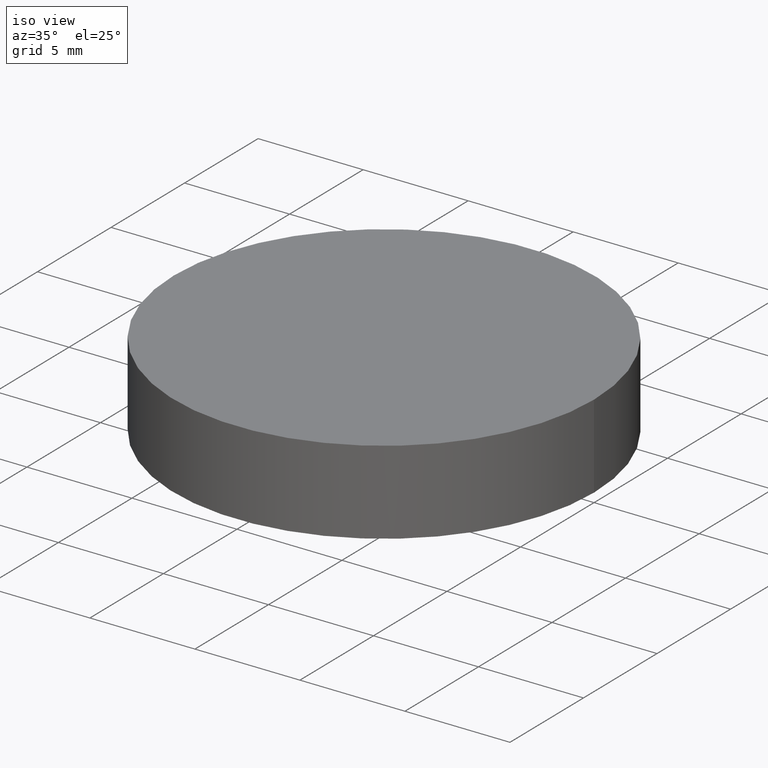
[diagram: clean part render]
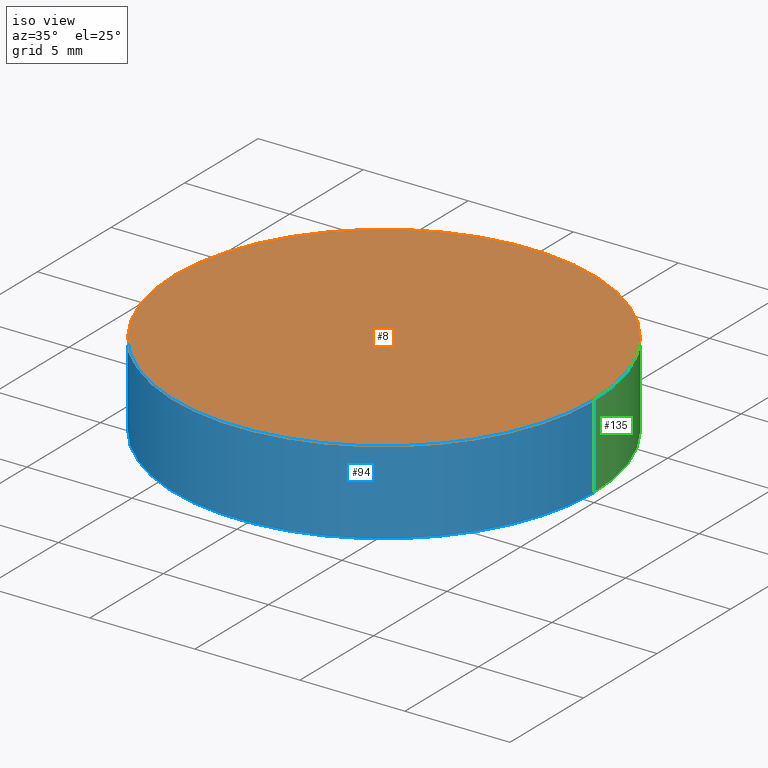
[diagram: same view with three faces highlighted in distinct colors, each labeled with its STEP entity id]
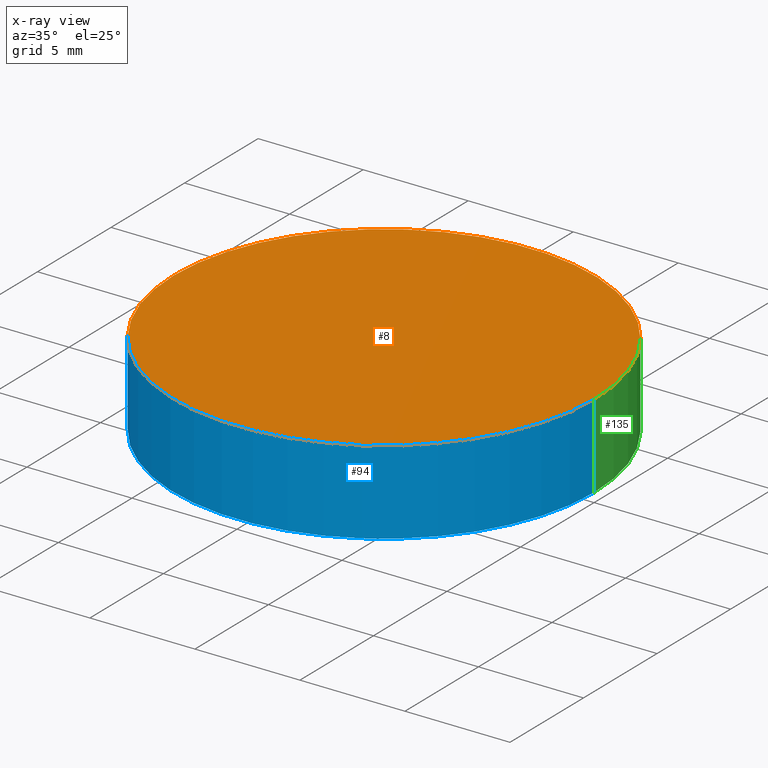
[diagram: x-ray of the same camera — body ghosted, the three highlighted faces saturated]
A machine part, iso view with three faces highlighted in distinct colors.
The next image is the same camera in x-ray (body ghosted, the three faces saturated) — at least one of them is partly hidden behind the body in this view.
Their STEP definitions:

[orange] entity #8 — the highlighted planar face has unit normal (0, 0, 1).
#8 = ADVANCED_FACE ( 'NONE', ( #121 ), #127, .T. ) ;
#32 = CARTESIAN_POINT ( 'NONE',  ( 0.0000000000000000000, 0.0000000000000000000, 4.000000000000000000 ) ) ;
#34 = DIRECTION ( 'NONE',  ( 1.000000000000000000, 0.0000000000000000000, 0.0000000000000000000 ) ) ;
#35 = DIRECTION ( 'NONE',  ( 1.000000000000000000, 0.0000000000000000000, -0.0000000000000000000 ) ) ;
#36 = CIRCLE ( 'NONE', #66, 10.00000000000000000 ) ;
#37 = VERTEX_POINT ( 'NONE', #111 ) ;
#40 = CIRCLE ( 'NONE', #84, 10.00000000000000000 ) ;
#43 = DIRECTION ( 'NONE',  ( 1.000000000000000000, 0.0000000000000000000, 0.0000000000000000000 ) ) ;
#47 = EDGE_LOOP ( 'NONE', ( #88, #131 ) ) ;
#66 = AXIS2_PLACEMENT_3D ( 'NONE', #80, #92, #34 ) ;
#70 = VERTEX_POINT ( 'NONE', #90 ) ;
#80 = CARTESIAN_POINT ( 'NONE',  ( 0.0000000000000000000, 0.0000000000000000000, 4.000000000000000000 ) ) ;
#84 = AXIS2_PLACEMENT_3D ( 'NONE', #32, #115, #43 ) ;
#87 = EDGE_CURVE ( 'NONE', #70, #37, #36, .T. ) ;
#88 = ORIENTED_EDGE ( 'NONE', *, *, #87, .T. ) ;
#90 = CARTESIAN_POINT ( 'NONE',  ( -10.00000000000000000, 0.0000000000000000000, 4.000000000000000000 ) ) ;
#92 = DIRECTION ( 'NONE',  ( 0.0000000000000000000, 0.0000000000000000000, 1.000000000000000000 ) ) ;
#93 = DIRECTION ( 'NONE',  ( 0.0000000000000000000, 0.0000000000000000000, 1.000000000000000000 ) ) ;
#95 = AXIS2_PLACEMENT_3D ( 'NONE', #136, #93, #35 ) ;
#105 = EDGE_CURVE ( 'NONE', #37, #70, #40, .T. ) ;
#111 = CARTESIAN_POINT ( 'NONE',  ( 10.00000000000000000, 1.224646799147353300E-015, 4.000000000000000000 ) ) ;
#115 = DIRECTION ( 'NONE',  ( 0.0000000000000000000, 0.0000000000000000000, 1.000000000000000000 ) ) ;
#121 = FACE_OUTER_BOUND ( 'NONE', #47, .T. ) ;
#127 = PLANE ( 'NONE',  #95 ) ;
#131 = ORIENTED_EDGE ( 'NONE', *, *, #105, .T. ) ;
#136 = CARTESIAN_POINT ( 'NONE',  ( 0.0000000000000000000, 0.0000000000000000000, 4.000000000000000000 ) ) ;

[blue] entity #94 — the highlighted cylindrical surface (partial cylindrical patch) has radius 10 mm, axis along (-0, -0, -1).
#1 = VERTEX_POINT ( 'NONE', #52 ) ;
#2 = AXIS2_PLACEMENT_3D ( 'NONE', #6, #4, #39 ) ;
#4 = DIRECTION ( 'NONE',  ( -0.0000000000000000000, -0.0000000000000000000, -1.000000000000000000 ) ) ;
#6 = CARTESIAN_POINT ( 'NONE',  ( 0.0000000000000000000, 0.0000000000000000000, 4.000000000000000000 ) ) ;
#12 = EDGE_CURVE ( 'NONE', #70, #15, #109, .T. ) ;
#15 = VERTEX_POINT ( 'NONE', #48 ) ;
#20 = ORIENTED_EDGE ( 'NONE', *, *, #12, .T. ) ;
#21 = CARTESIAN_POINT ( 'NONE',  ( -10.00000000000000000, 0.0000000000000000000, 4.000000000000000000 ) ) ;
#24 = EDGE_CURVE ( 'NONE', #37, #1, #96, .T. ) ;
#28 = DIRECTION ( 'NONE',  ( -0.0000000000000000000, -0.0000000000000000000, -1.000000000000000000 ) ) ;
#30 = CYLINDRICAL_SURFACE ( 'NONE', #2, 10.00000000000000000 ) ;
#34 = DIRECTION ( 'NONE',  ( 1.000000000000000000, 0.0000000000000000000, 0.0000000000000000000 ) ) ;
#36 = CIRCLE ( 'NONE', #66, 10.00000000000000000 ) ;
#37 = VERTEX_POINT ( 'NONE', #111 ) ;
#39 = DIRECTION ( 'NONE',  ( -1.000000000000000000, 0.0000000000000000000, 0.0000000000000000000 ) ) ;
#45 = AXIS2_PLACEMENT_3D ( 'NONE', #49, #125, #61 ) ;
#48 = CARTESIAN_POINT ( 'NONE',  ( -10.00000000000000000, 0.0000000000000000000, 0.0000000000000000000 ) ) ;
#49 = CARTESIAN_POINT ( 'NONE',  ( 0.0000000000000000000, 0.0000000000000000000, 0.0000000000000000000 ) ) ;
#52 = CARTESIAN_POINT ( 'NONE',  ( 10.00000000000000000, 1.224646799147353300E-015, 0.0000000000000000000 ) ) ;
#55 = ORIENTED_EDGE ( 'NONE', *, *, #87, .F. ) ;
#56 = VECTOR ( 'NONE', #28, 1000.000000000000000 ) ;
#57 = ORIENTED_EDGE ( 'NONE', *, *, #24, .F. ) ;
#60 = CARTESIAN_POINT ( 'NONE',  ( 10.00000000000000000, 1.224646799147353300E-015, 4.000000000000000000 ) ) ;
#61 = DIRECTION ( 'NONE',  ( 1.000000000000000000, 0.0000000000000000000, 0.0000000000000000000 ) ) ;
#66 = AXIS2_PLACEMENT_3D ( 'NONE', #80, #92, #34 ) ;
#70 = VERTEX_POINT ( 'NONE', #90 ) ;
#74 = ORIENTED_EDGE ( 'NONE', *, *, #128, .T. ) ;
#75 = EDGE_LOOP ( 'NONE', ( #57, #55, #20, #74 ) ) ;
#79 = FACE_OUTER_BOUND ( 'NONE', #75, .T. ) ;
#80 = CARTESIAN_POINT ( 'NONE',  ( 0.0000000000000000000, 0.0000000000000000000, 4.000000000000000000 ) ) ;
#87 = EDGE_CURVE ( 'NONE', #70, #37, #36, .T. ) ;
#90 = CARTESIAN_POINT ( 'NONE',  ( -10.00000000000000000, 0.0000000000000000000, 4.000000000000000000 ) ) ;
#92 = DIRECTION ( 'NONE',  ( 0.0000000000000000000, 0.0000000000000000000, 1.000000000000000000 ) ) ;
#94 = ADVANCED_FACE ( 'NONE', ( #79 ), #30, .T. ) ;
#96 = LINE ( 'NONE', #60, #56 ) ;
#109 = LINE ( 'NONE', #21, #122 ) ;
#111 = CARTESIAN_POINT ( 'NONE',  ( 10.00000000000000000, 1.224646799147353300E-015, 4.000000000000000000 ) ) ;
#116 = DIRECTION ( 'NONE',  ( -0.0000000000000000000, -0.0000000000000000000, -1.000000000000000000 ) ) ;
#122 = VECTOR ( 'NONE', #116, 1000.000000000000000 ) ;
#125 = DIRECTION ( 'NONE',  ( 0.0000000000000000000, 0.0000000000000000000, 1.000000000000000000 ) ) ;
#128 = EDGE_CURVE ( 'NONE', #15, #1, #139, .T. ) ;
#139 = CIRCLE ( 'NONE', #45, 10.00000000000000000 ) ;

[green] entity #135 — the highlighted cylindrical surface (partial cylindrical patch) has radius 10 mm, axis along (-0, -0, -1).
#1 = VERTEX_POINT ( 'NONE', #52 ) ;
#5 = EDGE_CURVE ( 'NONE', #1, #15, #89, .T. ) ;
#12 = EDGE_CURVE ( 'NONE', #70, #15, #109, .T. ) ;
#15 = VERTEX_POINT ( 'NONE', #48 ) ;
#21 = CARTESIAN_POINT ( 'NONE',  ( -10.00000000000000000, 0.0000000000000000000, 4.000000000000000000 ) ) ;
#24 = EDGE_CURVE ( 'NONE', #37, #1, #96, .T. ) ;
#28 = DIRECTION ( 'NONE',  ( -0.0000000000000000000, -0.0000000000000000000, -1.000000000000000000 ) ) ;
#31 = DIRECTION ( 'NONE',  ( -0.0000000000000000000, -0.0000000000000000000, -1.000000000000000000 ) ) ;
#32 = CARTESIAN_POINT ( 'NONE',  ( 0.0000000000000000000, 0.0000000000000000000, 4.000000000000000000 ) ) ;
#37 = VERTEX_POINT ( 'NONE', #111 ) ;
#40 = CIRCLE ( 'NONE', #84, 10.00000000000000000 ) ;
#43 = DIRECTION ( 'NONE',  ( 1.000000000000000000, 0.0000000000000000000, 0.0000000000000000000 ) ) ;
#44 = DIRECTION ( 'NONE',  ( 0.0000000000000000000, 0.0000000000000000000, 1.000000000000000000 ) ) ;
#48 = CARTESIAN_POINT ( 'NONE',  ( -10.00000000000000000, 0.0000000000000000000, 0.0000000000000000000 ) ) ;
#50 = DIRECTION ( 'NONE',  ( -1.000000000000000000, 0.0000000000000000000, 0.0000000000000000000 ) ) ;
#52 = CARTESIAN_POINT ( 'NONE',  ( 10.00000000000000000, 1.224646799147353300E-015, 0.0000000000000000000 ) ) ;
#56 = VECTOR ( 'NONE', #28, 1000.000000000000000 ) ;
#60 = CARTESIAN_POINT ( 'NONE',  ( 10.00000000000000000, 1.224646799147353300E-015, 4.000000000000000000 ) ) ;
#62 = ORIENTED_EDGE ( 'NONE', *, *, #24, .T. ) ;
#67 = AXIS2_PLACEMENT_3D ( 'NONE', #133, #44, #104 ) ;
#68 = EDGE_LOOP ( 'NONE', ( #98, #62, #86, #118 ) ) ;
#70 = VERTEX_POINT ( 'NONE', #90 ) ;
#78 = AXIS2_PLACEMENT_3D ( 'NONE', #126, #31, #50 ) ;
#83 = FACE_OUTER_BOUND ( 'NONE', #68, .T. ) ;
#84 = AXIS2_PLACEMENT_3D ( 'NONE', #32, #115, #43 ) ;
#86 = ORIENTED_EDGE ( 'NONE', *, *, #5, .T. ) ;
#89 = CIRCLE ( 'NONE', #67, 10.00000000000000000 ) ;
#90 = CARTESIAN_POINT ( 'NONE',  ( -10.00000000000000000, 0.0000000000000000000, 4.000000000000000000 ) ) ;
#96 = LINE ( 'NONE', #60, #56 ) ;
#98 = ORIENTED_EDGE ( 'NONE', *, *, #105, .F. ) ;
#104 = DIRECTION ( 'NONE',  ( 1.000000000000000000, 0.0000000000000000000, 0.0000000000000000000 ) ) ;
#105 = EDGE_CURVE ( 'NONE', #37, #70, #40, .T. ) ;
#109 = LINE ( 'NONE', #21, #122 ) ;
#111 = CARTESIAN_POINT ( 'NONE',  ( 10.00000000000000000, 1.224646799147353300E-015, 4.000000000000000000 ) ) ;
#115 = DIRECTION ( 'NONE',  ( 0.0000000000000000000, 0.0000000000000000000, 1.000000000000000000 ) ) ;
#116 = DIRECTION ( 'NONE',  ( -0.0000000000000000000, -0.0000000000000000000, -1.000000000000000000 ) ) ;
#118 = ORIENTED_EDGE ( 'NONE', *, *, #12, .F. ) ;
#122 = VECTOR ( 'NONE', #116, 1000.000000000000000 ) ;
#126 = CARTESIAN_POINT ( 'NONE',  ( 0.0000000000000000000, 0.0000000000000000000, 4.000000000000000000 ) ) ;
#133 = CARTESIAN_POINT ( 'NONE',  ( 0.0000000000000000000, 0.0000000000000000000, 0.0000000000000000000 ) ) ;
#134 = CYLINDRICAL_SURFACE ( 'NONE', #78, 10.00000000000000000 ) ;
#135 = ADVANCED_FACE ( 'NONE', ( #83 ), #134, .T. ) ;